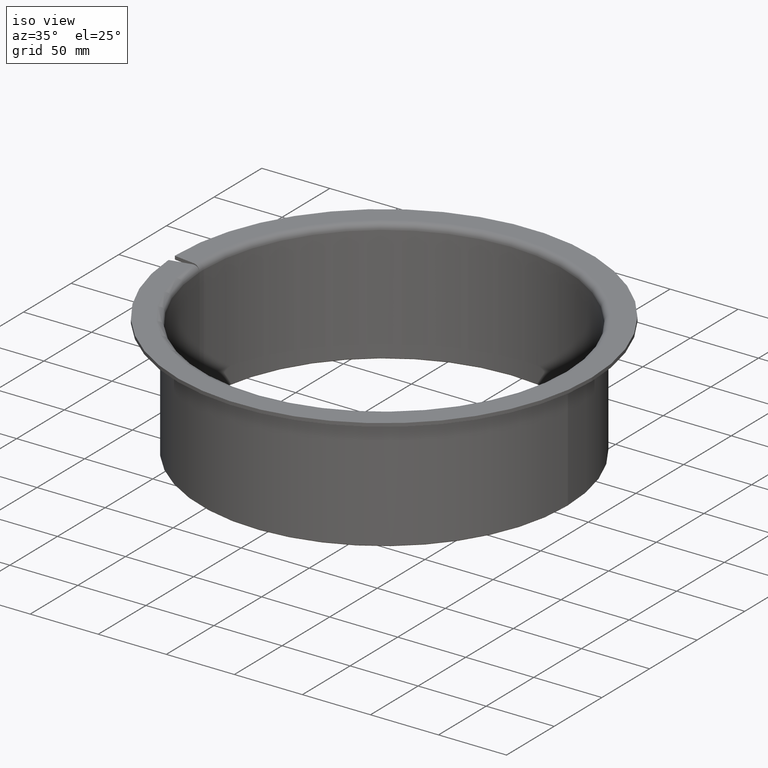
[diagram: clean part render]
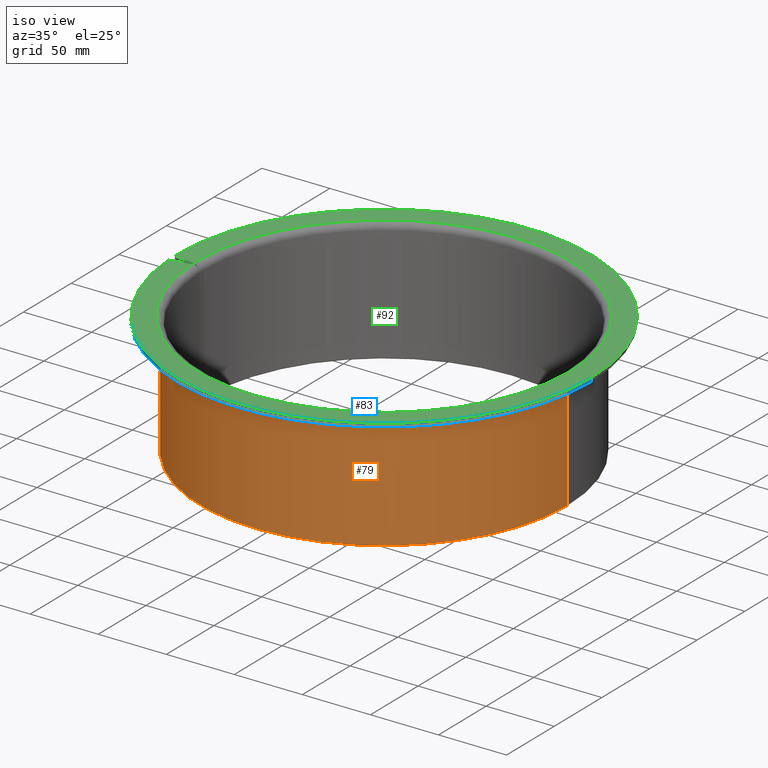
[diagram: same view with three faces highlighted in distinct colors, each labeled with its STEP entity id]
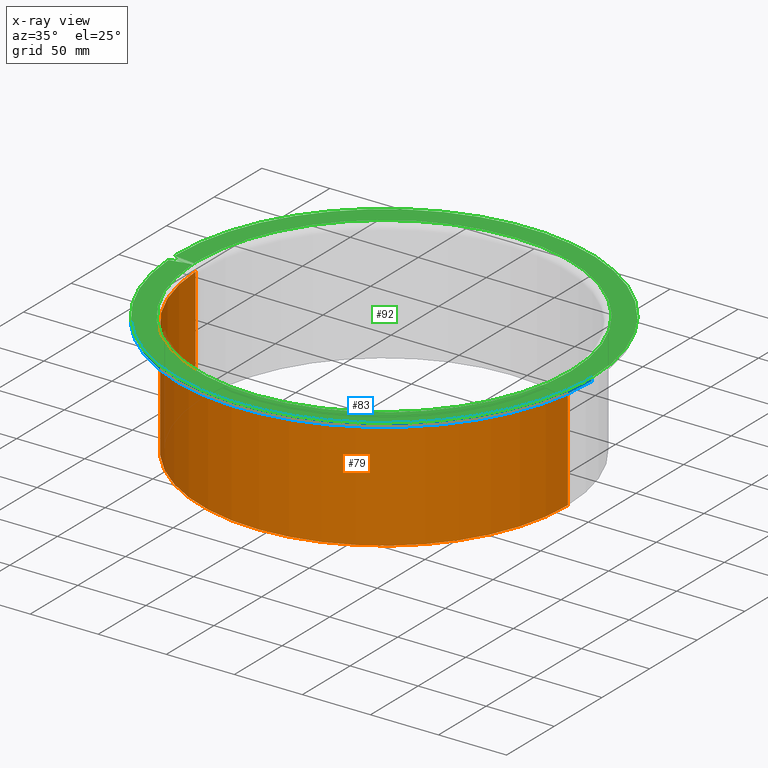
[diagram: x-ray of the same camera — body ghosted, the three highlighted faces saturated]
A machine part, iso view with three faces highlighted in distinct colors.
The next image is the same camera in x-ray (body ghosted, the three faces saturated) — at least one of them is partly hidden behind the body in this view.
Their STEP definitions:

[orange] entity #79 — the highlighted cylindrical surface (partial cylindrical patch) has radius 135 mm, axis along (-0, -0, 1).
#79=ADVANCED_FACE('',(#110),#111,.T.);
#110=FACE_OUTER_BOUND('',#162,.T.);
#111=CYLINDRICAL_SURFACE('',#163,135.0);
#162=EDGE_LOOP('',(#234,#235,#236,#237));
#163=AXIS2_PLACEMENT_3D('',#238,#239,#240);
#234=ORIENTED_EDGE('',*,*,#427,.F.);
#235=ORIENTED_EDGE('',*,*,#428,.F.);
#236=ORIENTED_EDGE('',*,*,#429,.T.);
#237=ORIENTED_EDGE('',*,*,#420,.T.);
#238=CARTESIAN_POINT('',(-2.8295281413662E-030,-1.49014960731379E-015,43.0));
#239=DIRECTION('',(-1.16269284789061E-031,-6.12323399573677E-017,1.0));
#240=DIRECTION('',(-1.0,1.88237377125682E-015,-1.00713410063058E-033));
#420=EDGE_CURVE('',#492,#489,#493,.T.);
#427=EDGE_CURVE('',#505,#489,#506,.T.);
#428=EDGE_CURVE('',#507,#505,#508,.T.);
#429=EDGE_CURVE('',#507,#492,#509,.T.);
#489=VERTEX_POINT('',#595);
#492=VERTEX_POINT('',#599);
#493=CIRCLE('',#600,135.0);
#505=VERTEX_POINT('',#615);
#506=LINE('',#616,#617);
#507=VERTEX_POINT('',#618);
#508=CIRCLE('',#619,135.0);
#509=LINE('',#620,#621);
#595=CARTESIAN_POINT('',(135.0,-2.69540966067286E-013,0.500000000000007));
#599=CARTESIAN_POINT('',(-134.901662913234,-5.15182911635036,0.500000000000006));
#600=AXIS2_PLACEMENT_3D('',#791,#792,#793);
#615=CARTESIAN_POINT('',(135.0,-2.76584232552576E-013,85.5));
#616=CARTESIAN_POINT('',(135.0,-2.72143340515474E-013,43.0));
#617=VECTOR('',#806,1.0);
#618=CARTESIAN_POINT('',(-134.901662913234,-5.15182911635032,85.5));
#619=AXIS2_PLACEMENT_3D('',#807,#808,#809);
#620=CARTESIAN_POINT('',(-134.901662913234,-5.15182911635033,43.0));
#621=VECTOR('',#810,10.0);
#791=CARTESIAN_POINT('',(1.38670259942823E-030,7.30296441936522E-016,0.500000000000006));
#792=DIRECTION('',(-1.16269284789061E-031,-6.12323399573677E-017,1.0));
#793=DIRECTION('',(-1.0,1.88237377125682E-015,-1.00713410063058E-033));
#806=DIRECTION('',(1.16269284789061E-031,6.12323399573677E-017,-1.0));
#807=CARTESIAN_POINT('',(-7.04575888216064E-030,-3.7105956565641E-015,85.5));
#808=DIRECTION('',(-1.16269284789061E-031,-6.12323399573677E-017,1.0));
#809=DIRECTION('',(-1.0,1.88237377125682E-015,-1.00713410063056E-033));
#810=DIRECTION('',(1.16269284789061E-031,6.12323399573677E-017,-1.0));

[blue] entity #83 — the highlighted cylindrical surface (partial cylindrical patch) has radius 152.5 mm, axis along (-0, -0, 1).
#83=ADVANCED_FACE('',(#118),#119,.T.);
#118=FACE_OUTER_BOUND('',#170,.T.);
#119=CYLINDRICAL_SURFACE('',#171,152.5);
#170=EDGE_LOOP('',(#262,#263,#264,#265));
#171=AXIS2_PLACEMENT_3D('',#266,#267,#268);
#262=ORIENTED_EDGE('',*,*,#439,.F.);
#263=ORIENTED_EDGE('',*,*,#440,.F.);
#264=ORIENTED_EDGE('',*,*,#441,.T.);
#265=ORIENTED_EDGE('',*,*,#442,.T.);
#266=CARTESIAN_POINT('',(-7.04575888216064E-030,-3.7105956565641E-015,88.75));
#267=DIRECTION('',(-1.16269284789061E-031,-6.12323399573676E-017,1.0));
#268=DIRECTION('',(-1.0,1.88237377125682E-015,-1.00713410063058E-033));
#439=EDGE_CURVE('',#524,#525,#526,.T.);
#440=EDGE_CURVE('',#527,#524,#528,.T.);
#441=EDGE_CURVE('',#527,#529,#530,.T.);
#442=EDGE_CURVE('',#529,#525,#531,.T.);
#524=VERTEX_POINT('',#651);
#525=VERTEX_POINT('',#652);
#526=LINE('',#653,#654);
#527=VERTEX_POINT('',#655);
#528=CIRCLE('',#656,152.5);
#529=VERTEX_POINT('',#657);
#530=LINE('',#658,#659);
#531=CIRCLE('',#660,152.5);
#651=CARTESIAN_POINT('',(152.5,-3.09524999885173E-013,90.0));
#652=CARTESIAN_POINT('',(152.5,-3.0937191903528E-013,87.5));
#653=CARTESIAN_POINT('',(152.5,-3.09448459460227E-013,88.75));
#654=VECTOR('',#831,1.0);
#655=CARTESIAN_POINT('',(-152.243686023932,-8.8379899211592,90.0));
#656=AXIS2_PLACEMENT_3D('',#832,#833,#834);
#657=CARTESIAN_POINT('',(-152.243686023932,-8.83798992115919,87.5));
#658=CARTESIAN_POINT('',(-152.243686023932,-8.83798992115919,88.75));
#659=VECTOR('',#835,10.0);
#660=AXIS2_PLACEMENT_3D('',#836,#837,#838);
#831=DIRECTION('',(1.16269284789061E-031,6.12323399573677E-017,-1.0));
#832=CARTESIAN_POINT('',(-7.04575888216064E-030,-3.7105956565641E-015,90.0));
#833=DIRECTION('',(-1.16269284789061E-031,-6.12323399573676E-017,1.0));
#834=DIRECTION('',(-1.0,1.88237377125682E-015,-1.00713410063058E-033));
#835=DIRECTION('',(1.16269284789061E-031,6.12323399573677E-017,-1.0));
#836=CARTESIAN_POINT('',(-7.04575888216064E-030,-3.7105956565641E-015,87.5));
#837=DIRECTION('',(-1.16269284789061E-031,-6.12323399573676E-017,1.0));
#838=DIRECTION('',(-1.0,1.88237377125682E-015,-1.00713410063058E-033));

[green] entity #92 — the highlighted planar face has unit normal (-0, -0, 1).
#92=ADVANCED_FACE('',(#136),#137,.T.);
#136=FACE_OUTER_BOUND('',#188,.T.);
#137=PLANE('',#189);
#188=EDGE_LOOP('',(#331,#332,#333,#334,#335,#336,#337,#338));
#189=AXIS2_PLACEMENT_3D('',#339,#340,#341);
#331=ORIENTED_EDGE('',*,*,#466,.T.);
#332=ORIENTED_EDGE('',*,*,#440,.T.);
#333=ORIENTED_EDGE('',*,*,#467,.T.);
#334=ORIENTED_EDGE('',*,*,#446,.T.);
#335=ORIENTED_EDGE('',*,*,#461,.T.);
#336=ORIENTED_EDGE('',*,*,#452,.F.);
#337=ORIENTED_EDGE('',*,*,#465,.F.);
#338=ORIENTED_EDGE('',*,*,#450,.F.);
#339=CARTESIAN_POINT('',(-144.75,2.6892337321503E-013,90.0));
#340=DIRECTION('',(-1.16269284789061E-031,-6.12323399573677E-017,1.0));
#341=DIRECTION('',(-1.0,1.89882151931499E-015,0.0));
#440=EDGE_CURVE('',#527,#524,#528,.T.);
#446=EDGE_CURVE('',#533,#537,#539,.T.);
#450=EDGE_CURVE('',#545,#541,#547,.T.);
#452=EDGE_CURVE('',#548,#551,#552,.T.);
#461=EDGE_CURVE('',#537,#551,#562,.T.);
#465=EDGE_CURVE('',#541,#548,#566,.T.);
#466=EDGE_CURVE('',#545,#527,#567,.T.);
#467=EDGE_CURVE('',#524,#533,#568,.T.);
#524=VERTEX_POINT('',#651);
#527=VERTEX_POINT('',#655);
#528=CIRCLE('',#656,152.5);
#533=VERTEX_POINT('',#662);
#537=VERTEX_POINT('',#667);
#539=CIRCLE('',#670,152.5);
#541=VERTEX_POINT('',#672);
#545=VERTEX_POINT('',#676);
#547=CIRCLE('',#699,137.0);
#548=VERTEX_POINT('',#700);
#551=VERTEX_POINT('',#703);
#552=CIRCLE('',#704,137.0);
#562=LINE('',#741,#742);
#566=CIRCLE('',#748,137.0);
#567=LINE('',#749,#750);
#568=CIRCLE('',#751,152.5);
#651=CARTESIAN_POINT('',(152.5,-3.09524999885173E-013,90.0));
#655=CARTESIAN_POINT('',(-152.243686023932,-8.8379899211592,90.0));
#656=AXIS2_PLACEMENT_3D('',#832,#833,#834);
#662=CARTESIAN_POINT('',(-152.5,3.01950727722152E-013,90.0));
#667=CARTESIAN_POINT('',(-152.489335068405,-1.80352166492205,90.0));
#670=AXIS2_PLACEMENT_3D('',#844,#845,#846);
#672=CARTESIAN_POINT('',(137.0,-2.80902350480844E-013,90.0));
#676=CARTESIAN_POINT('',(-136.886571598268,-5.57373448166978,90.0));
#699=AXIS2_PLACEMENT_3D('',#853,#854,#855);
#700=CARTESIAN_POINT('',(-137.0,2.729300681081E-013,90.0));
#703=CARTESIAN_POINT('',(-136.941926852777,-3.98856739300773,90.0));
#704=AXIS2_PLACEMENT_3D('',#859,#860,#861);
#741=CARTESIAN_POINT('',(-148.686554641929,-2.33796760024946,90.0));
#742=VECTOR('',#872,10.0);
#748=AXIS2_PLACEMENT_3D('',#878,#879,#880);
#749=CARTESIAN_POINT('',(-147.629400508279,-7.857193257389,90.0));
#750=VECTOR('',#881,10.0);
#751=AXIS2_PLACEMENT_3D('',#882,#883,#884);
#832=CARTESIAN_POINT('',(-7.04575888216064E-030,-3.7105956565641E-015,90.0));
#833=DIRECTION('',(-1.16269284789061E-031,-6.12323399573676E-017,1.0));
#834=DIRECTION('',(-1.0,1.88237377125682E-015,-1.00713410063058E-033));
#844=CARTESIAN_POINT('',(-7.04575888216064E-030,-3.7105956565641E-015,90.0));
#845=DIRECTION('',(-1.16269284789061E-031,-6.12323399573676E-017,1.0));
#846=DIRECTION('',(-1.0,1.88237377125682E-015,-1.00713410063058E-033));
#853=CARTESIAN_POINT('',(-7.04575888216064E-030,-3.7105956565641E-015,90.0));
#854=DIRECTION('',(-1.16269284789061E-031,-6.12323399573677E-017,1.0));
#855=DIRECTION('',(-1.0,1.88237377125682E-015,-1.0071341006306E-033));
#859=CARTESIAN_POINT('',(-7.04575888216064E-030,-3.7105956565641E-015,90.0));
#860=DIRECTION('',(-1.16269284789061E-031,-6.12323399573677E-017,1.0));
#861=DIRECTION('',(-1.0,1.88237377125682E-015,-1.0071341006306E-033));
#872=DIRECTION('',(0.990268068741547,-0.13917310096023,-8.52189463091771E-018));
#878=CARTESIAN_POINT('',(-7.04575888216064E-030,-3.7105956565641E-015,90.0));
#879=DIRECTION('',(-1.16269284789061E-031,-6.12323399573677E-017,1.0));
#880=DIRECTION('',(-1.0,1.88237377125682E-015,-1.0071341006306E-033));
#881=DIRECTION('',(-0.97814760073384,-0.207911690817597,-1.27309193332543E-017));
#882=CARTESIAN_POINT('',(-7.04575888216064E-030,-3.7105956565641E-015,90.0));
#883=DIRECTION('',(-1.16269284789061E-031,-6.12323399573676E-017,1.0));
#884=DIRECTION('',(-1.0,1.88237377125682E-015,-1.00713410063058E-033));